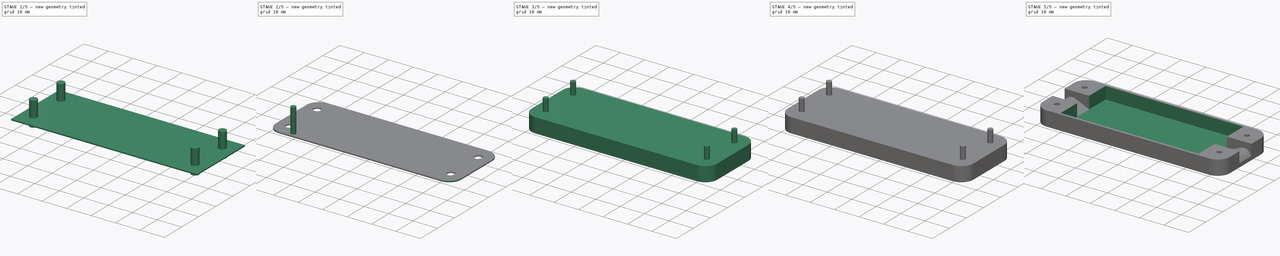
[diagram: build sequence overview — one tinted view per stage of 5, left to right]
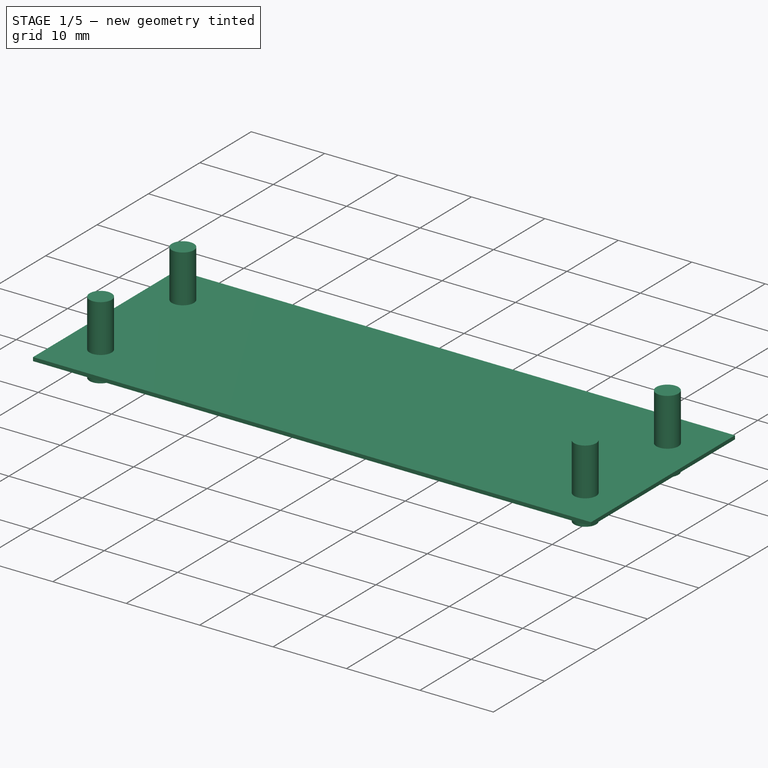
[diagram: stage 1 of 5 — iso view after this stage's code; geometry added in this stage tinted green]
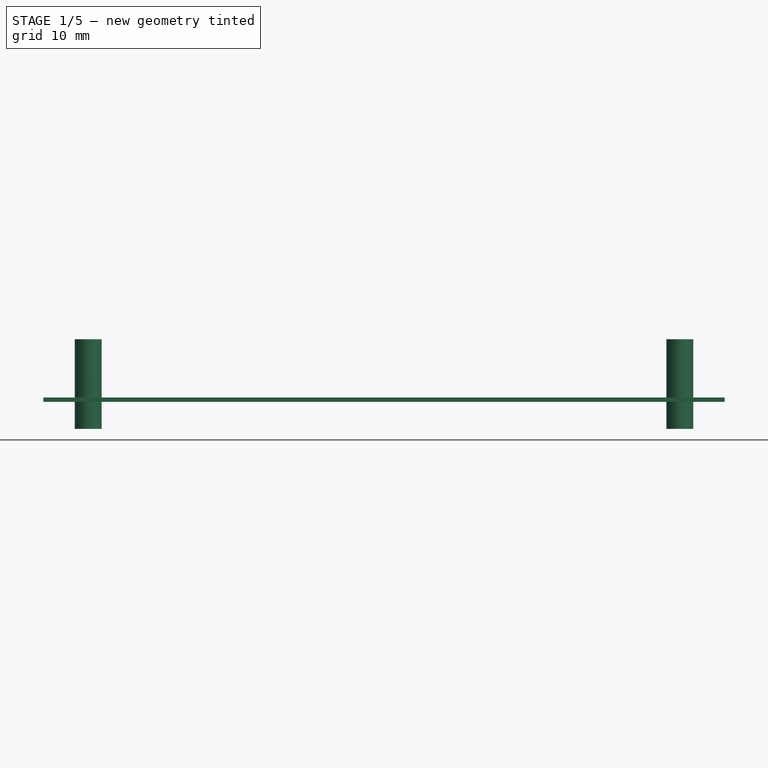
[diagram: stage 1 of 5 — front view after this stage's code; geometry added in this stage tinted green]
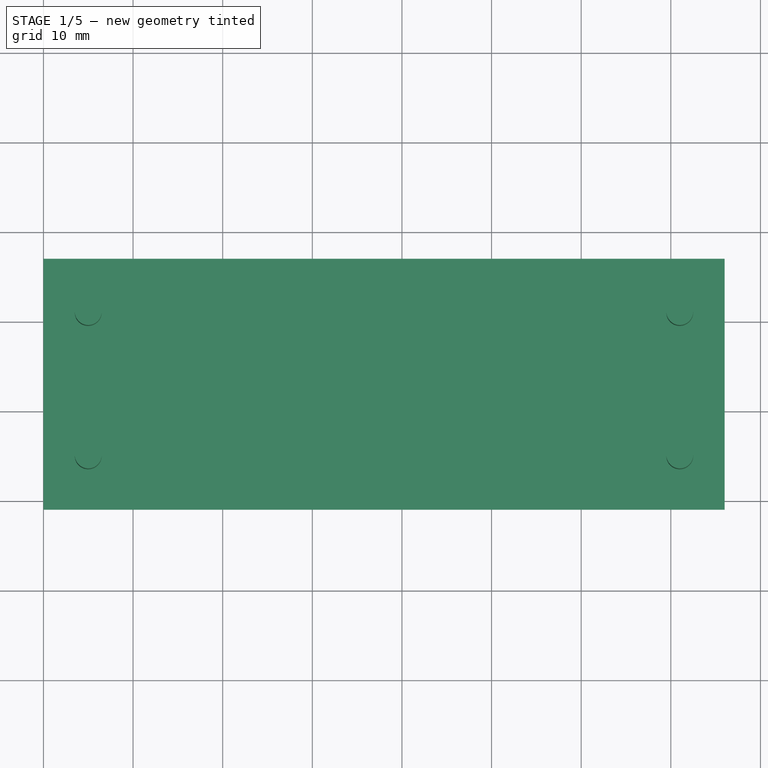
[diagram: stage 1 of 5 — top view after this stage's code; geometry added in this stage tinted green]
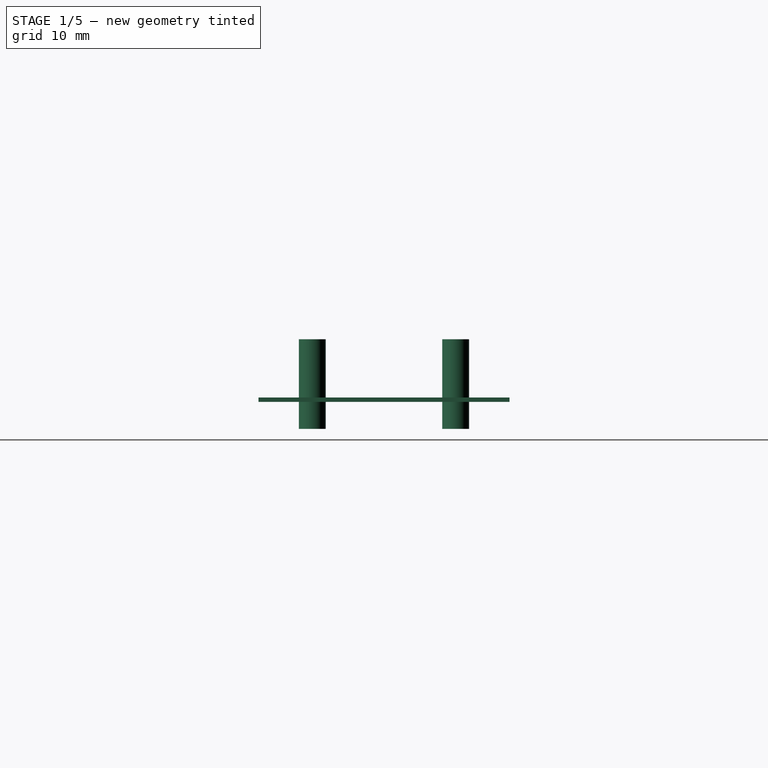
[diagram: stage 1 of 5 — right view after this stage's code; geometry added in this stage tinted green]
FCSTD DOCUMENT  (FreeCAD 0.18.4R)
Label: audio_amplifier
License: FreeArt
LicenseURL: http://artlibre.org/licence/lal
objects: Part::Box×3, Part::MultiFuse×2, Part::Fillet×2, Part::Cylinder×2, Part::FeaturePython×2, Part::Cut×2, App::Part×2, Spreadsheet::Sheet×1, Sketcher::SketchObject×1, PartDesign::Pad×1, PartDesign::Body×1, Part::Mirroring×1
note: 18 computed .brp shape members not serialized (recipe doc carries the construction recipe); baked Part::Feature solids carry a one-line shape summary decoded from their .brp

FEATURE [App::Part] Part  label="amplifier box part"
  Group = -> [Cut,Box001,Box,Fusion,Body]
  Origin = -> Origin
FEATURE [Part::Box] Box002  label="outer cube001"
  AttacherType = Attacher::AttachEngine3D
  Height = 0.5
  Length = 76
  Placement = pos=(-10,-1,-1) rot=(0,0,1;0rad)
  Width = 28
  expr: Placement.Base.y = -p.wall
  expr: Placement.Base.x = -p.side_wire_space_x
  expr: Placement.Base.z = -p.wall
  expr: Height = p.lid_z
  expr: Width = p.box_y + 2 * p.wall
  expr: Length = p.box_x + 2 * p.side_wire_space_x
FEATURE [Part::Cylinder] Cylinder001  label="screw body hole"
  Angle = 360
  AttacherType = Attacher::AttachEngine3D
  Height = 10
  Radius = 1.5
  expr: Radius = p.screw_body_hole_r
FEATURE [Part::FeaturePython] Array001  label="screw body hole array"  # Draft array (typed FeaturePython)
  Angle = 360
  ArrayType = 0
  Axis = (0,0,1)
  Base = -> Cylinder001
  Center = (0,0,0)
  Fuse = false
  IntervalAxis = (0,0,0)
  IntervalX = (66,0,0)
  IntervalY = (0,16,0)
  IntervalZ = (0,0,1)
  NumberPolar = 1
  NumberX = 2
  NumberY = 2
  NumberZ = 1
  Placement = pos=(-5,5,-4) rot=(0,0,1;0rad)
  expr: Placement.Base.y = (p.box_y - p.screw_hole_dist_y) / 2
  expr: Placement.Base.x = -(p.screw_hole_dist_x - p.box_x) / 2
  expr: IntervalY.y = p.screw_hole_dist_y
  expr: IntervalX.x = p.screw_hole_dist_x
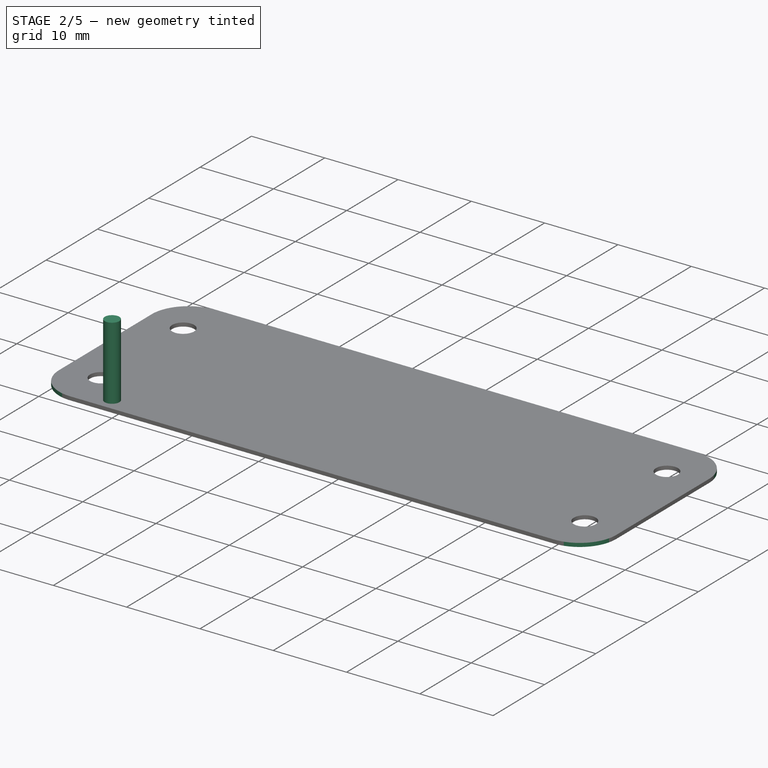
[diagram: stage 2 of 5 — iso view after this stage's code; geometry added in this stage tinted green]
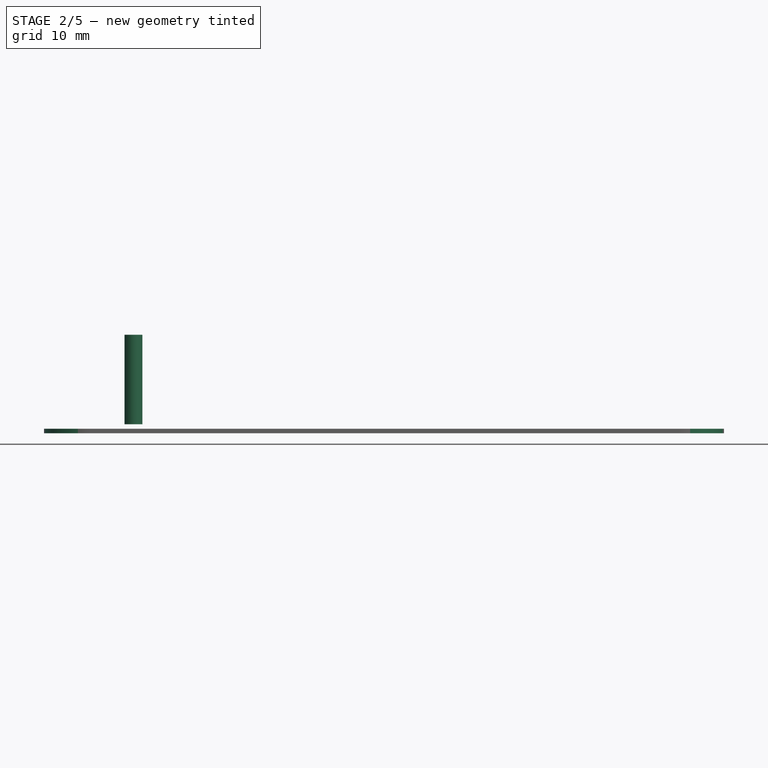
[diagram: stage 2 of 5 — front view after this stage's code; geometry added in this stage tinted green]
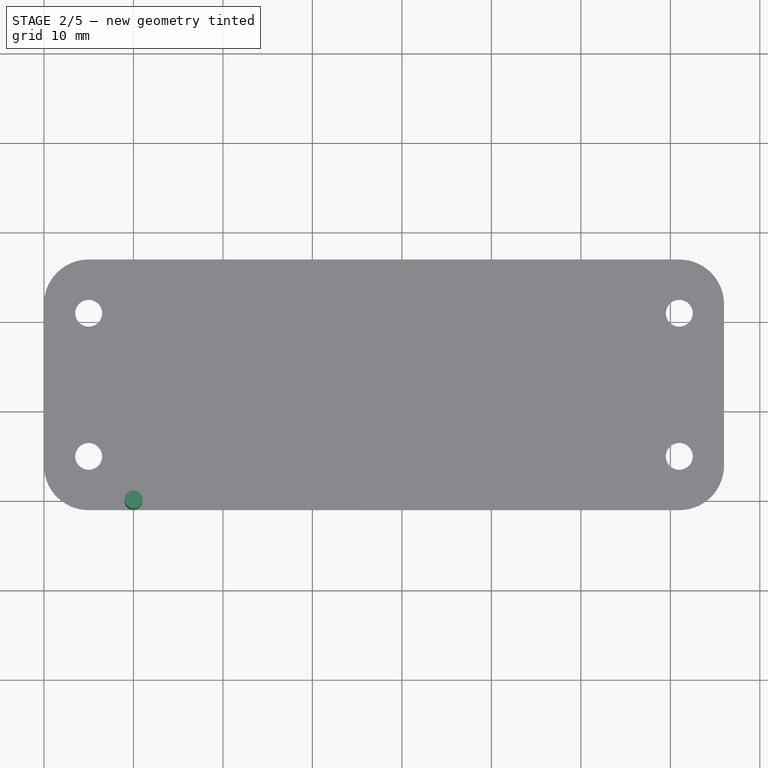
[diagram: stage 2 of 5 — top view after this stage's code; geometry added in this stage tinted green]
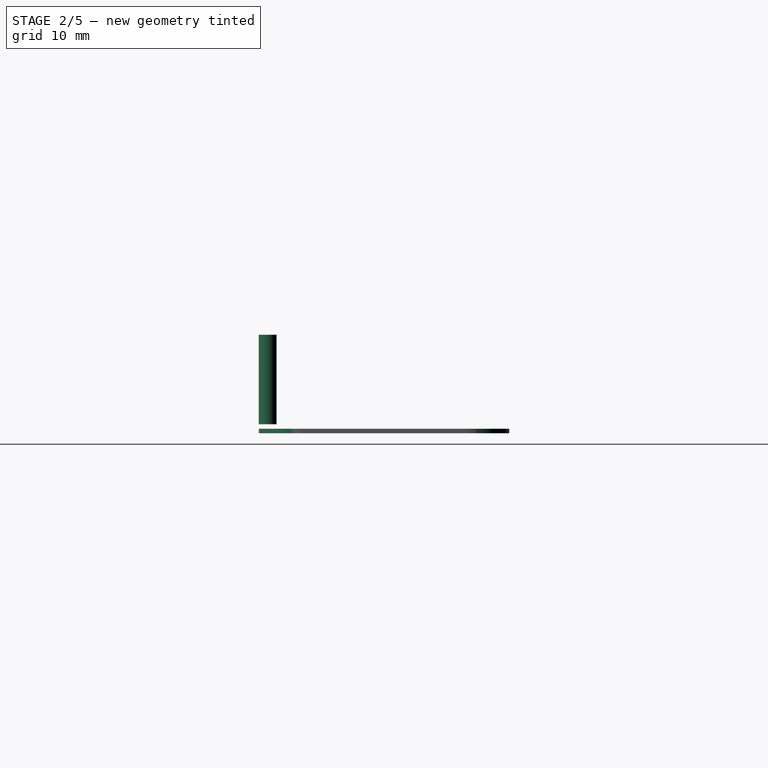
[diagram: stage 2 of 5 — right view after this stage's code; geometry added in this stage tinted green]
FEATURE [Part::Cylinder] Cylinder  label="screw hole"
  Angle = 360
  AttacherType = Attacher::AttachEngine3D
  Height = 10
  Radius = 1
  expr: Radius = p.screw_hole_r
FEATURE [Part::Fillet] Fillet001  label="outer fillet001"
  Base = -> Box002
  Edges = 4 edges r=5: [Edge1,Edge3,Edge5,Edge7]
FEATURE [Part::Cut] Cut001  label="amplifier lid cut"
  Base = -> Fillet001
  Tool = -> Array001
FEATURE [App::Part] Part001  label="amplifier box lid"
  Group = -> [Box002,Fillet001,Cylinder001,Array001,Cut001]
  Origin = -> Origin002
  Placement = pos=(0,0,13) rot=(0,0,1;0rad)
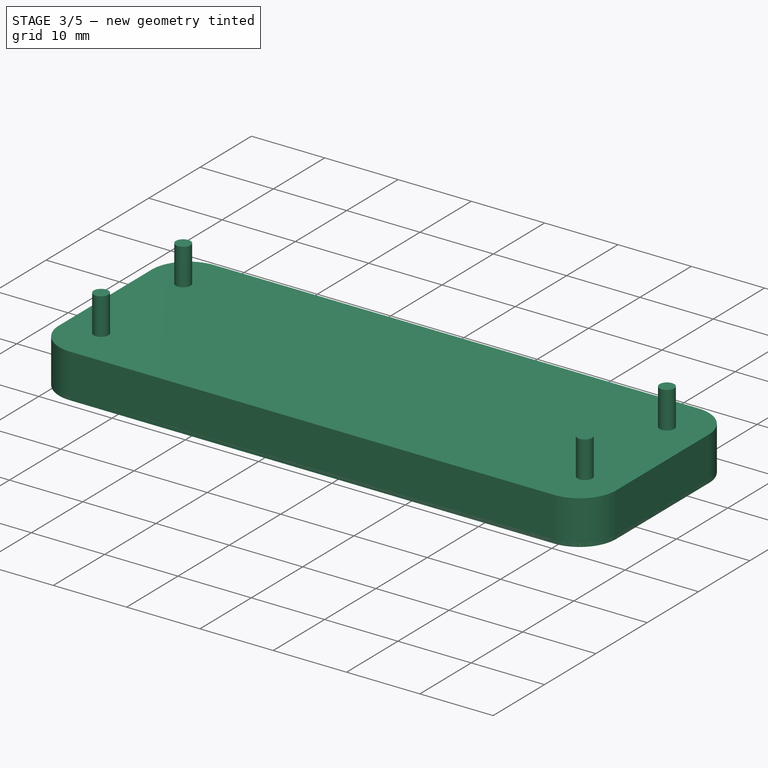
[diagram: stage 3 of 5 — iso view after this stage's code; geometry added in this stage tinted green]
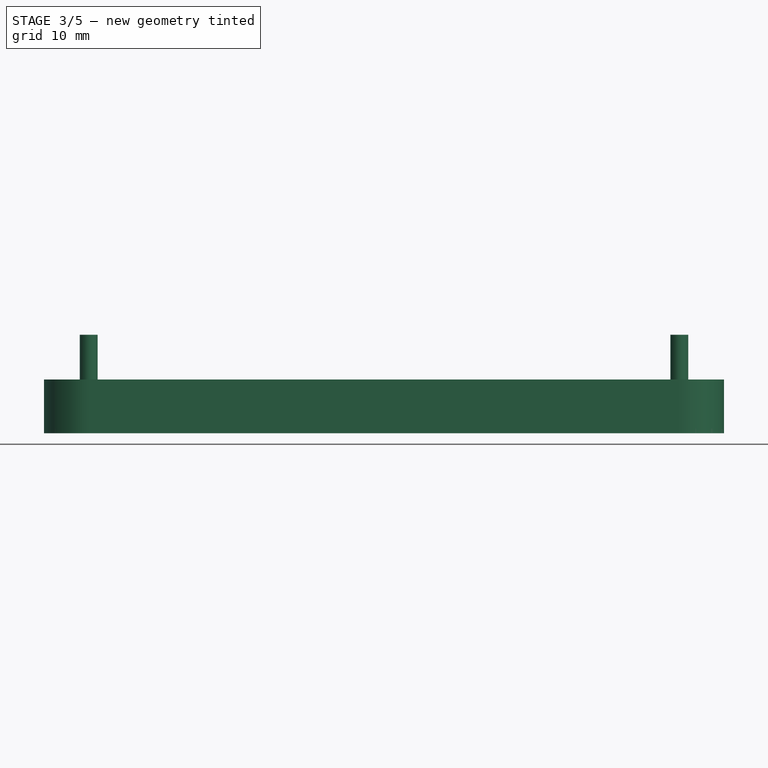
[diagram: stage 3 of 5 — front view after this stage's code; geometry added in this stage tinted green]
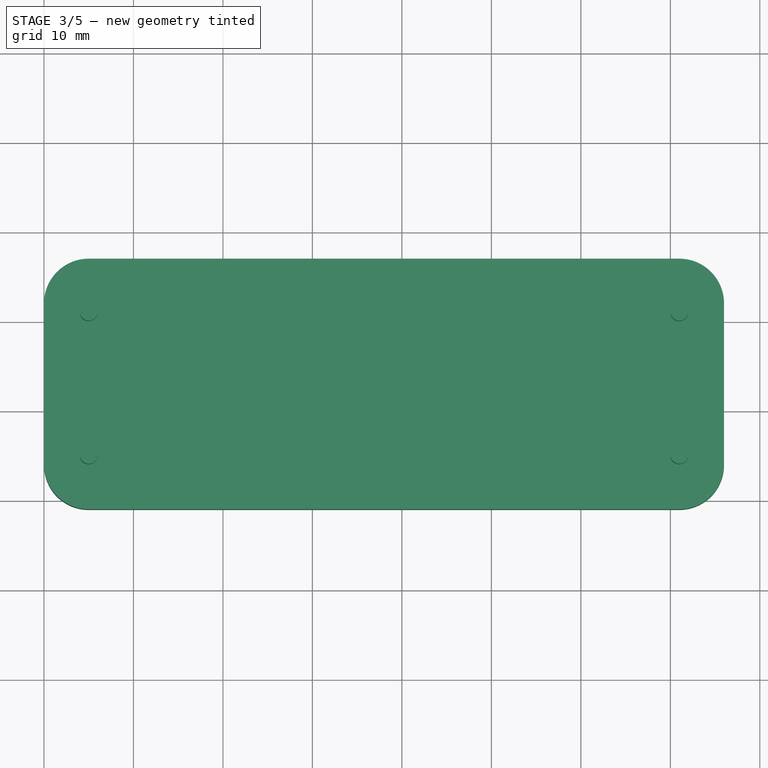
[diagram: stage 3 of 5 — top view after this stage's code; geometry added in this stage tinted green]
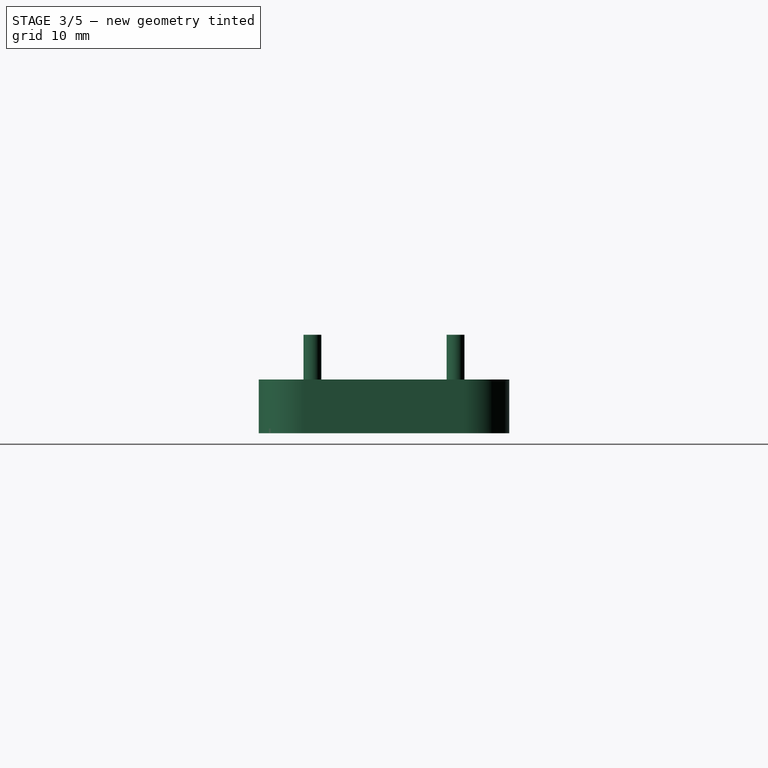
[diagram: stage 3 of 5 — right view after this stage's code; geometry added in this stage tinted green]
FEATURE [Part::Box] Box001  label="outer cube"
  AttacherType = Attacher::AttachEngine3D
  Height = 6
  Length = 76
  Placement = pos=(-10,-1,-1) rot=(0,0,1;0rad)
  Width = 28
  expr: Placement.Base.y = -p.wall
  expr: Placement.Base.x = -p.side_wire_space_x
  expr: Placement.Base.z = -p.wall
  expr: Height = p.box_z + p.wall
  expr: Width = p.box_y + 2 * p.wall
  expr: Length = p.box_x + 2 * p.side_wire_space_x
FEATURE [Part::Fillet] Fillet  label="outer fillet"
  Base = -> Box001
  Edges = 4 edges r=5: [Edge1,Edge3,Edge5,Edge7]
FEATURE [Part::FeaturePython] Array  label="screw hole array"  # Draft array (typed FeaturePython)
  Angle = 360
  ArrayType = 0
  Axis = (0,0,1)
  Base = -> Cylinder
  Center = (0,0,0)
  Fuse = false
  IntervalAxis = (0,0,0)
  IntervalX = (66,0,0)
  IntervalY = (0,16,0)
  IntervalZ = (0,0,1)
  NumberPolar = 1
  NumberX = 2
  NumberY = 2
  NumberZ = 1
  Placement = pos=(-5,5,0) rot=(0,0,1;0rad)
  expr: Placement.Base.y = (p.box_y - p.screw_hole_dist_y) / 2
  expr: Placement.Base.x = -(p.screw_hole_dist_x - p.box_x) / 2
  expr: IntervalY.y = p.screw_hole_dist_y
  expr: IntervalX.x = p.screw_hole_dist_x
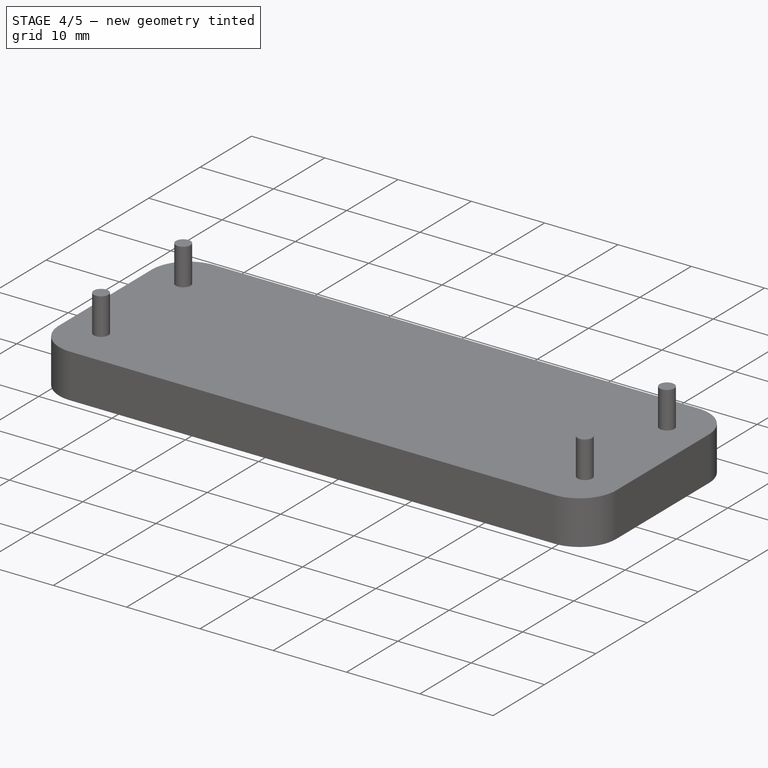
[diagram: stage 4 of 5 — iso view after this stage's code; geometry added in this stage tinted green]
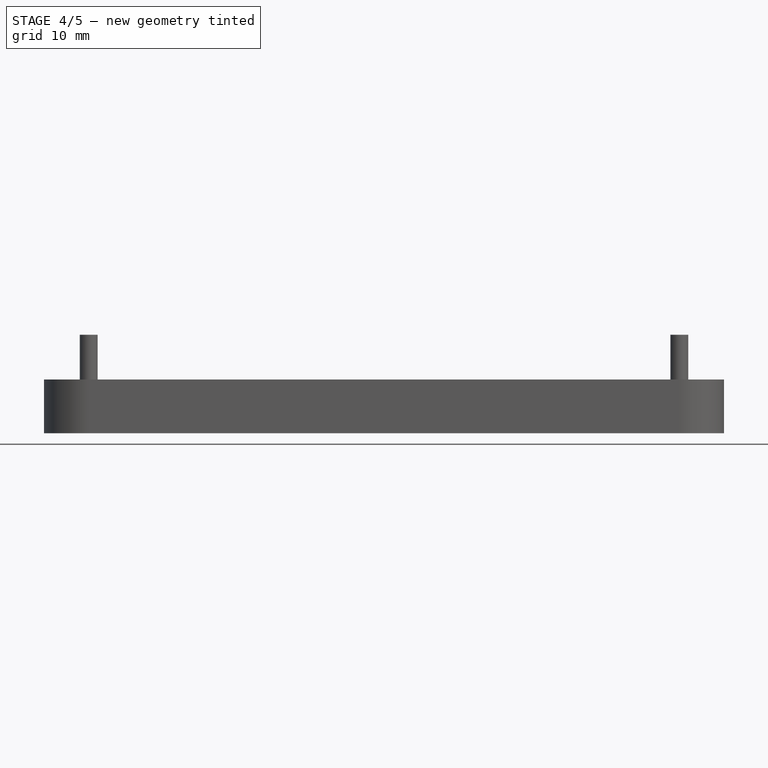
[diagram: stage 4 of 5 — front view after this stage's code; geometry added in this stage tinted green]
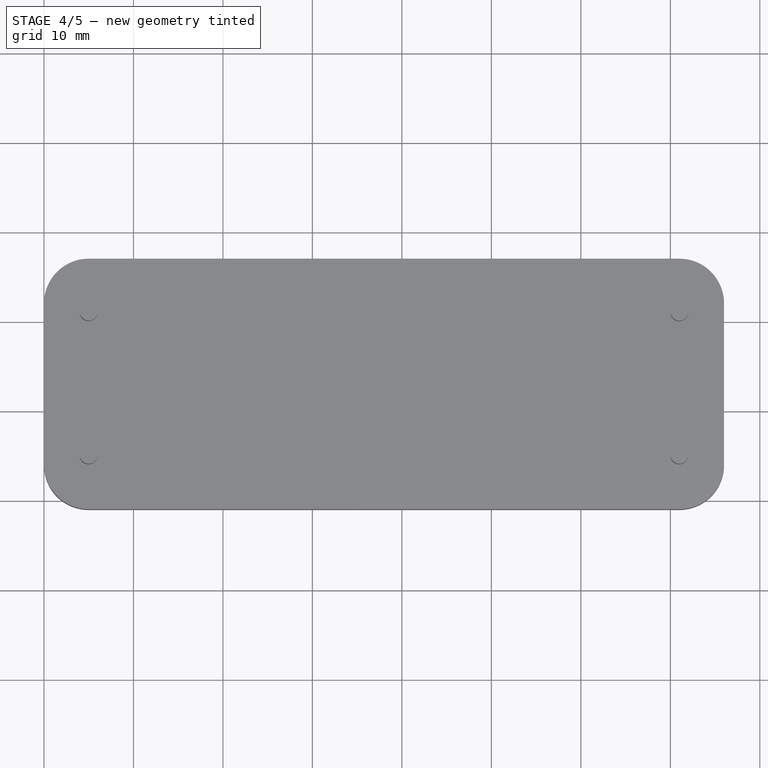
[diagram: stage 4 of 5 — top view after this stage's code; geometry added in this stage tinted green]
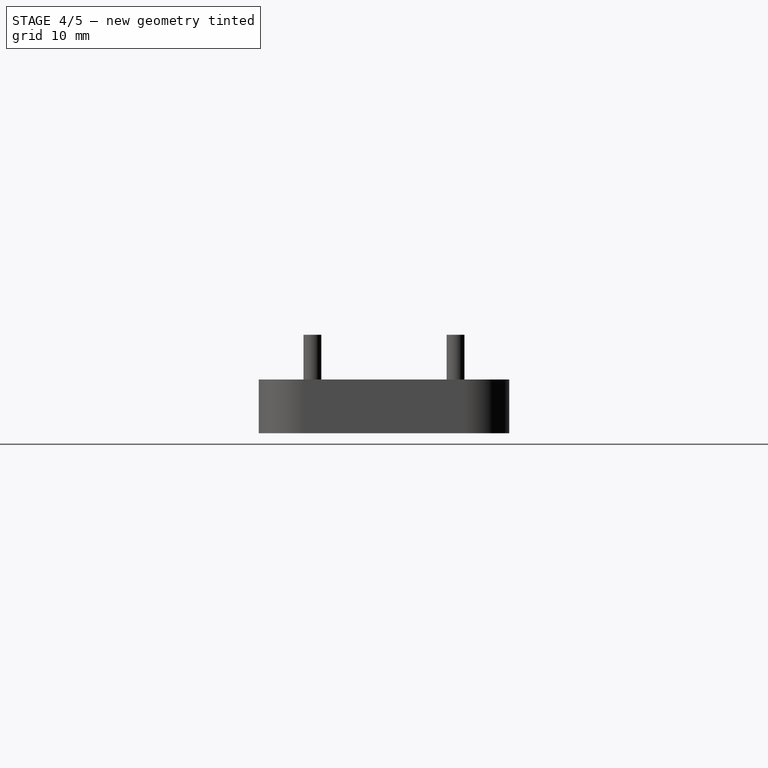
[diagram: stage 4 of 5 — right view after this stage's code; geometry added in this stage tinted green]
FEATURE [Sketcher::SketchObject] Sketch
  MapMode = 5
  Placement = pos=(0,0,0) rot=(1,0,0;1.5708rad)
  Support = -> [XZ_Plane001]
  expr: Constraints[4] = p.box_z
  expr: Constraints[3] = p.side_wire_space_x
  sketch-geometry (12):
    g0: LineSegment StartX=0 StartY=5 StartZ=0 EndX=-10 EndY=5 EndZ=0
    g1: LineSegment StartX=0 StartY=5 StartZ=0 EndX=0 EndY=0 EndZ=0
    g2-g6: Circle [constr] x5 (B-spline internal-alignment scaffolding for g7; pole/knot coordinates omitted)
    g7: BSplineCurve PolesCount=5 KnotsCount=3 Degree=3 IsPeriodic=0
    g8: GeomPoint [constr] X=-10 Y=0.583155 Z=0
    g9: GeomPoint [constr] X=-7.12341 Y=2.72331 Z=0
    g10: GeomPoint [constr] X=0 Y=0 Z=0
    g11: LineSegment StartX=-10 StartY=0.583155 StartZ=0 EndX=-10 EndY=5 EndZ=0
  constraints (16):
    c: PointOnObject(g0,g-2)
    c: Horizontal(g0)
    c: Coincident(g1,g0)
    c: DistanceX(g0,g0) = 10
    c: DistanceY(g1,g1) = 5
    c: Radius(g2) = 0.3
    c: Equal(g2, g3-g6) x4
    c: Coincident(g7,g1)
    c: InternalAlignment(g2-g6 -> g7) x5
    c: InternalAlignment(g8,g7)
    c: InternalAlignment(g9,g7)
    c: InternalAlignment(g10,g7)
    c: Coincident(g11,g7)
    c: Coincident(g11,g0)
    c: Vertical(g11)
    c: Coincident(g1,g-1)
FEATURE [PartDesign::Pad] Pad
  Length = 7
  Length2 = 100
  Placement = pos=(0,0,0) rot=(1,0,0;1.5708rad)
  Profile = -> Sketch
  Type = 0
  expr: Length = p.hole_width
FEATURE [PartDesign::Body] Body  label="wire hole body"
  Group = -> [Sketch,Pad]
  Origin = -> Origin001
  Tip = -> Pad
FEATURE [Part::Mirroring] Part__Mirroring  label="wire hole body (Mirror #1)"
  Base = (28,0,0)
  Normal = (1,0,0)
  Source = -> Body
  expr: Base.x = p.box_x / 2
FEATURE [Part::MultiFuse] Fusion001  label="wire hole fusion"
  Placement = pos=(0,16.5,0) rot=(0,0,1;0rad)
  Shapes = -> [Body,Part__Mirroring]
  expr: Placement.Base.y = (p.box_y + p.hole_width) / 2
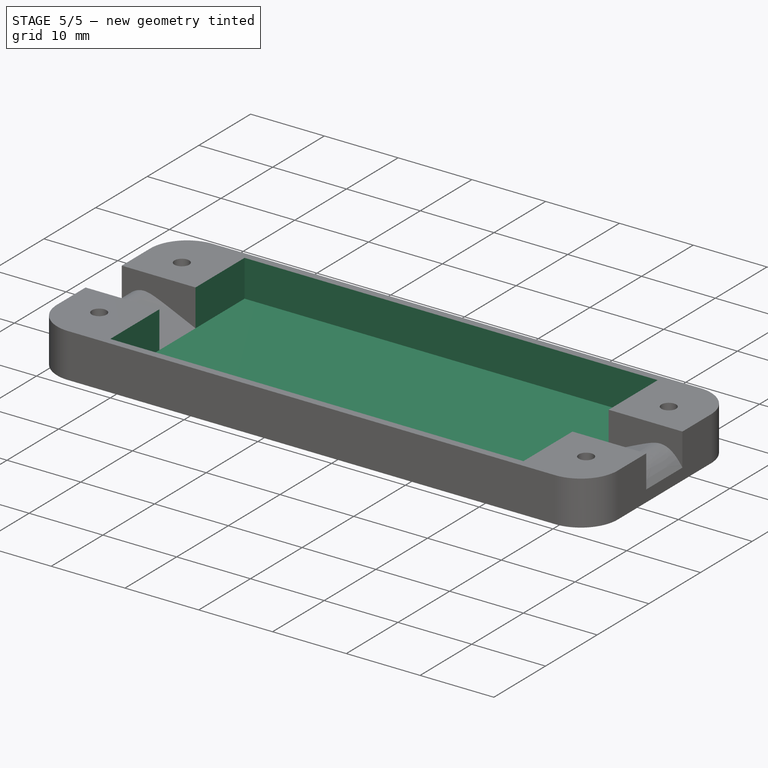
[diagram: stage 5 of 5 — iso view after this stage's code; geometry added in this stage tinted green]
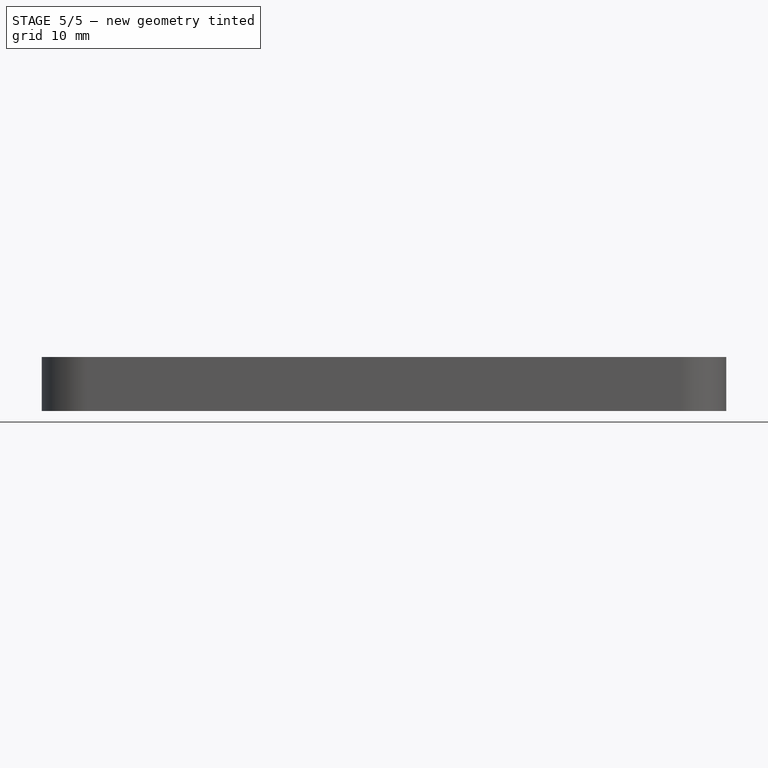
[diagram: stage 5 of 5 — front view after this stage's code; geometry added in this stage tinted green]
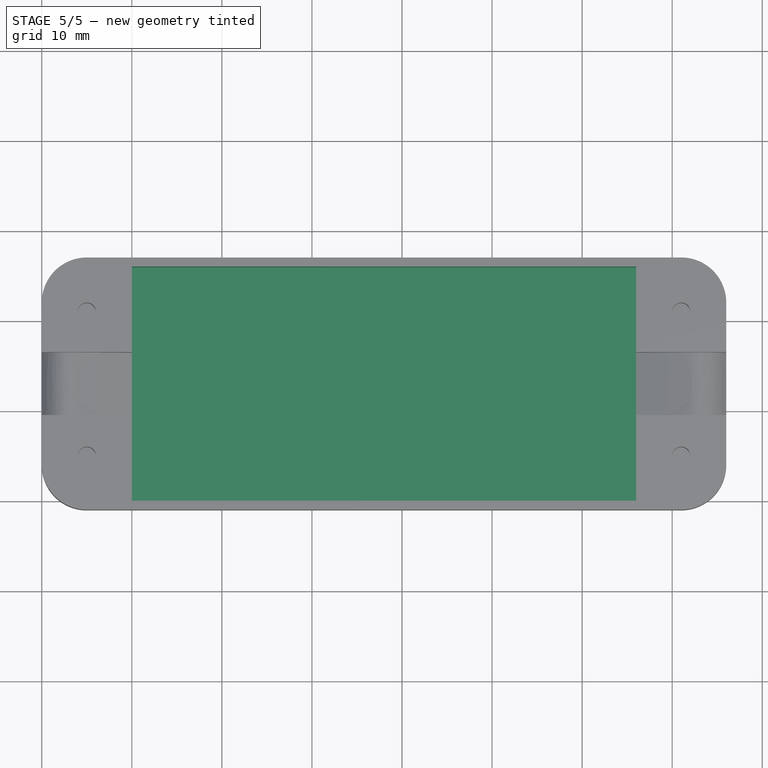
[diagram: stage 5 of 5 — top view after this stage's code; geometry added in this stage tinted green]
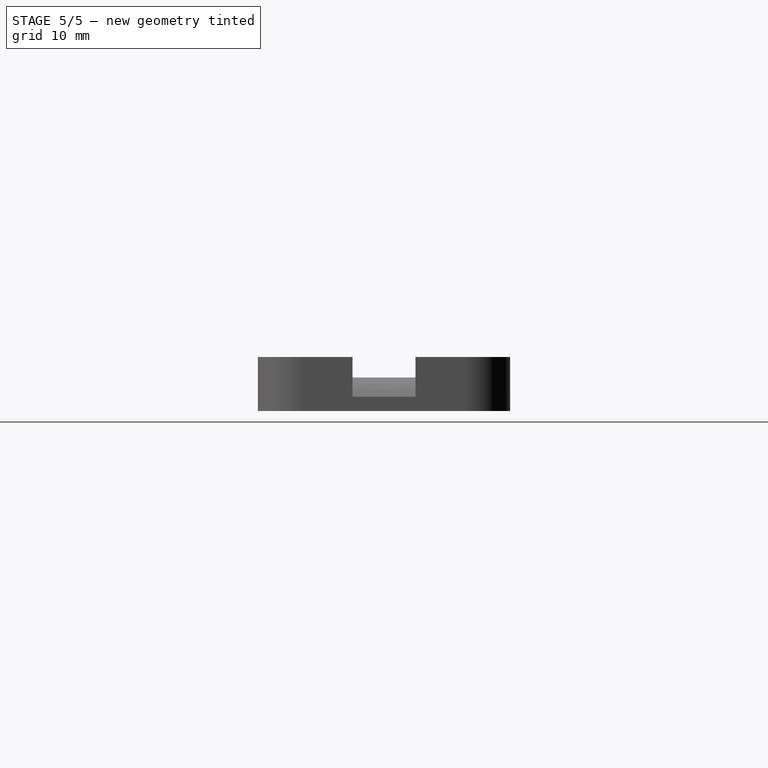
[diagram: stage 5 of 5 — right view after this stage's code; geometry added in this stage tinted green]
FEATURE [Spreadsheet::Sheet] Spreadsheet  label="p"
  cells = A1=box_x; B1(box_x)=56; A2=box_y; B2(box_y)=26; A3=box_z; B3(box_z)=5; A4=wall; B4(wall)=1; A5=hole_width; B5(hole_width)=7; A6=side_wire_space_x; B6(side_wire_space_x)=10; A7=screw_hole_r; B7(screw_hole_r)=1; A8=screw_body_hole_r; B8(screw_body_hole_r)=1.5; A9=screw_hole_dist_x; B9(screw_hole_dist_x)==box_x + 10; A10=screw_hole_dist_y; B10(screw_hole_dist_y)==box_y - 10; A11=lid_z; B11(lid_z)=0.5
FEATURE [Part::Box] Box  label="internal cube"
  AttacherType = Attacher::AttachEngine3D
  Height = 5
  Length = 56
  Width = 26
  expr: Height = p.box_z
  expr: Width = p.box_y
  expr: Length = p.box_x
FEATURE [Part::MultiFuse] Fusion  label="extraction fusion"
  Shapes = -> [Box,Fusion001,Array]
FEATURE [Part::Cut] Cut  label="box cut"
  Base = -> Fillet
  Tool = -> Fusion
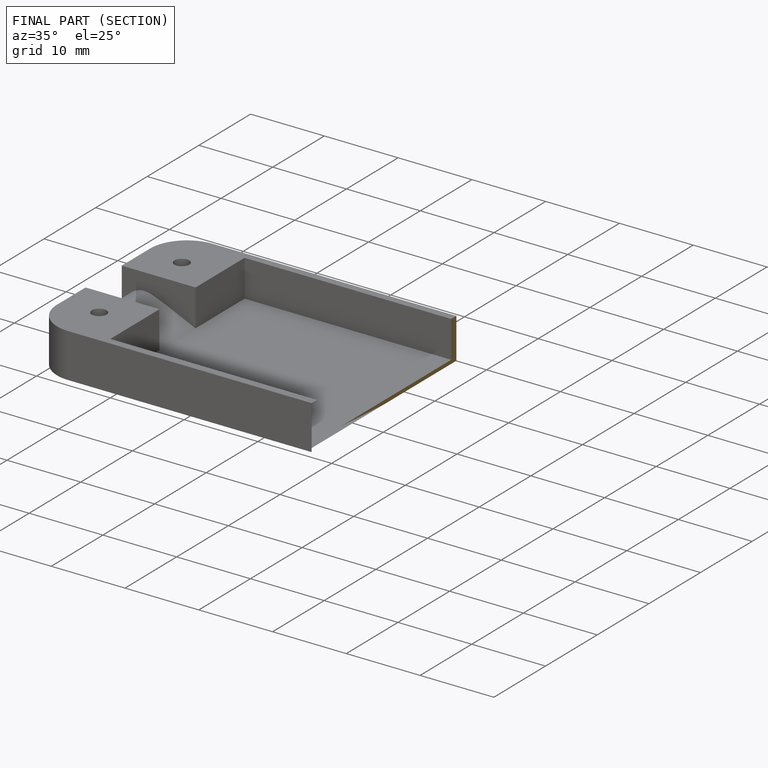
[diagram: finished part — half-section view (interior)]
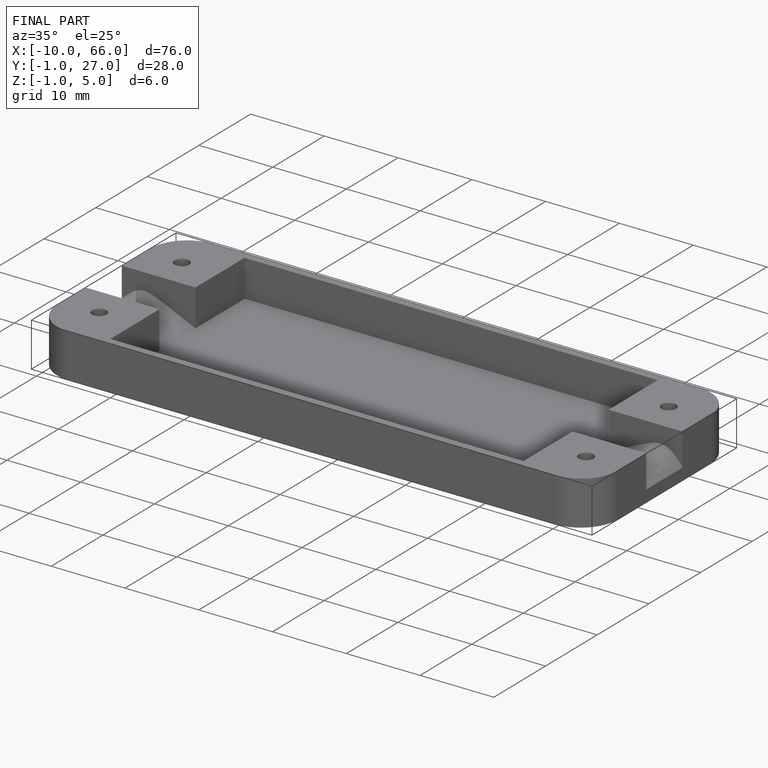
[diagram: finished part — iso view with bounding-box wireframe]
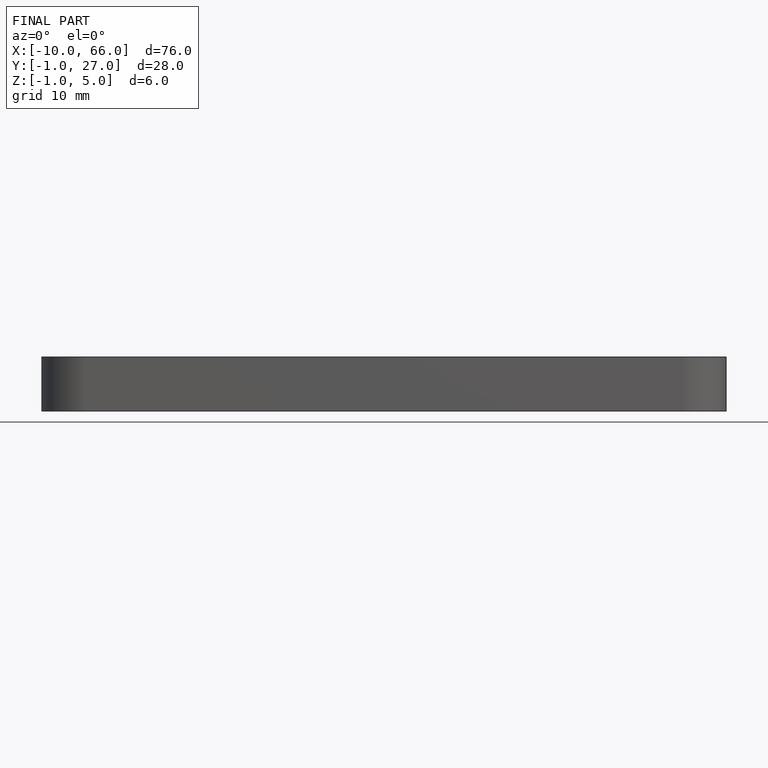
[diagram: finished part — front view with bounding-box wireframe]
